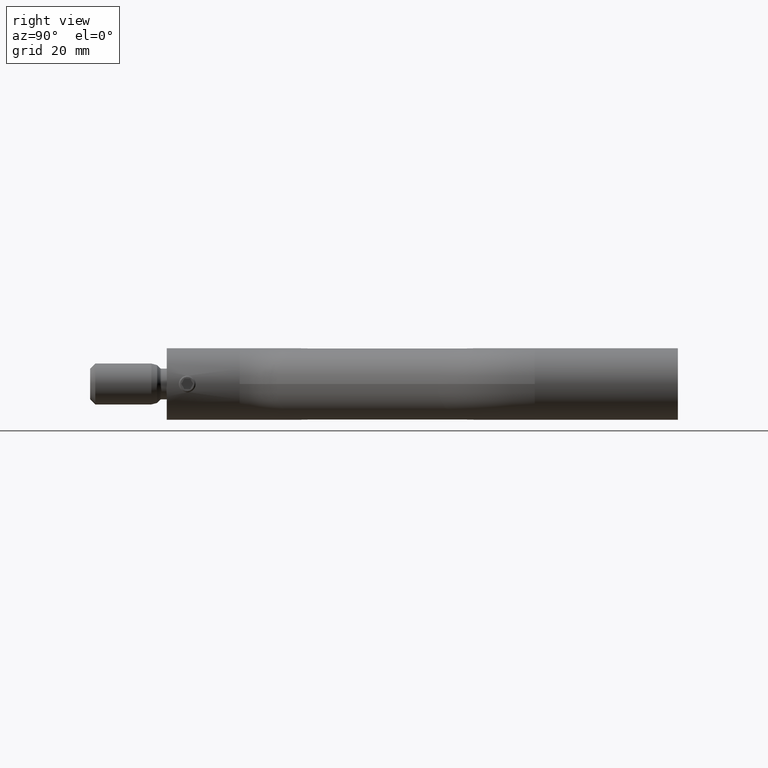
[diagram: clean part render]
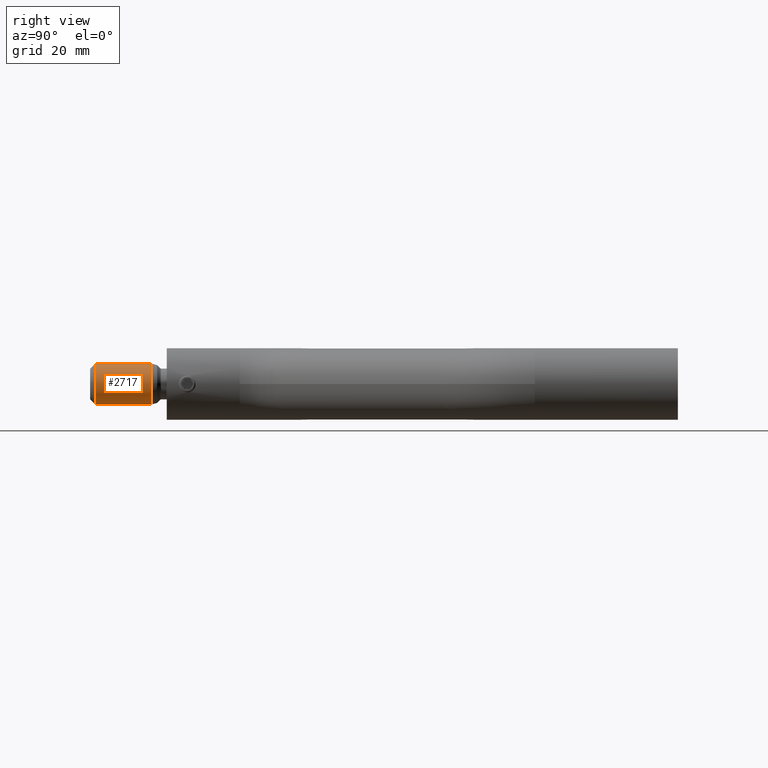
[diagram: same view with one face highlighted and labeled with its STEP entity id]
A machine part, right view. The second image highlights one B-rep face of the part: STEP entity #2717.
In plain terms, the highlighted cylindrical surface (edge-blend (fillet) strip) has radius 4 mm, axis along (-0, -1, -0).
Its self-contained STEP definition (entity closure, byte-faithful):
#89 = CARTESIAN_POINT ( 'NONE',  ( 4.898587196589413800E-016, -13.99999999999999800, -4.000000000000000000 ) ) ;
#202 = CARTESIAN_POINT ( 'NONE',  ( 0.0000000000000000000, 0.0000000000000000000, -4.000000000000001800 ) ) ;
#733 = EDGE_CURVE ( 'NONE', #6433, #6087, #5390, .T. ) ;
#736 = VECTOR ( 'NONE', #10069, 1000.000000000000000 ) ;
#846 = ORIENTED_EDGE ( 'NONE', *, *, #15585, .F. ) ;
#1073 = EDGE_LOOP ( 'NONE', ( #15853, #1677, #3355, #846 ) ) ;
#1135 = LINE ( 'NONE', #202, #736 ) ;
#1677 = ORIENTED_EDGE ( 'NONE', *, *, #7249, .T. ) ;
#2076 = DIRECTION ( 'NONE',  ( 0.0000000000000000000, 0.0000000000000000000, -1.000000000000000000 ) ) ;
#2399 = VECTOR ( 'NONE', #14181, 1000.000000000000000 ) ;
#2717 = ADVANCED_FACE ( 'NONE', ( #8352 ), #10270, .T. ) ;
#3182 = DIRECTION ( 'NONE',  ( 0.0000000000000000000, 0.0000000000000000000, -1.000000000000000000 ) ) ;
#3355 = ORIENTED_EDGE ( 'NONE', *, *, #733, .F. ) ;
#3641 = DIRECTION ( 'NONE',  ( -0.0000000000000000000, -1.000000000000000000, -0.0000000000000000000 ) ) ;
#4269 = CIRCLE ( 'NONE', #6614, 4.000000000000002700 ) ;
#4548 = CARTESIAN_POINT ( 'NONE',  ( 0.0000000000000000000, 0.0000000000000000000, 0.0000000000000000000 ) ) ;
#4611 = CARTESIAN_POINT ( 'NONE',  ( 0.0000000000000000000, -3.000000000000004400, -4.000000000000002700 ) ) ;
#5390 = CIRCLE ( 'NONE', #10880, 4.000000000000000000 ) ;
#5407 = CARTESIAN_POINT ( 'NONE',  ( 4.898587196589416800E-016, -3.000000000000004400, 4.000000000000002700 ) ) ;
#5582 = DIRECTION ( 'NONE',  ( -0.0000000000000000000, -1.000000000000000000, -0.0000000000000000000 ) ) ;
#5753 = DIRECTION ( 'NONE',  ( -0.0000000000000000000, -1.000000000000000000, -0.0000000000000000000 ) ) ;
#6087 = VERTEX_POINT ( 'NONE', #10998 ) ;
#6361 = AXIS2_PLACEMENT_3D ( 'NONE', #4548, #5582, #3182 ) ;
#6433 = VERTEX_POINT ( 'NONE', #89 ) ;
#6614 = AXIS2_PLACEMENT_3D ( 'NONE', #15496, #5753, #2076 ) ;
#7249 = EDGE_CURVE ( 'NONE', #15782, #6087, #13385, .T. ) ;
#8352 = FACE_OUTER_BOUND ( 'NONE', #1073, .T. ) ;
#10069 = DIRECTION ( 'NONE',  ( -0.0000000000000000000, -1.000000000000000000, -0.0000000000000000000 ) ) ;
#10270 = CYLINDRICAL_SURFACE ( 'NONE', #6361, 4.000000000000001800 ) ;
#10880 = AXIS2_PLACEMENT_3D ( 'NONE', #13463, #3641, #13713 ) ;
#10895 = VERTEX_POINT ( 'NONE', #4611 ) ;
#10998 = CARTESIAN_POINT ( 'NONE',  ( 0.0000000000000000000, -13.99999999999999800, 4.000000000000000000 ) ) ;
#11906 = EDGE_CURVE ( 'NONE', #10895, #15782, #4269, .T. ) ;
#13385 = LINE ( 'NONE', #13969, #2399 ) ;
#13463 = CARTESIAN_POINT ( 'NONE',  ( 0.0000000000000000000, -13.99999999999999800, 0.0000000000000000000 ) ) ;
#13713 = DIRECTION ( 'NONE',  ( 0.0000000000000000000, 0.0000000000000000000, -1.000000000000000000 ) ) ;
#13969 = CARTESIAN_POINT ( 'NONE',  ( 4.898587196589415800E-016, 0.0000000000000000000, 4.000000000000001800 ) ) ;
#14181 = DIRECTION ( 'NONE',  ( -0.0000000000000000000, -1.000000000000000000, -0.0000000000000000000 ) ) ;
#15496 = CARTESIAN_POINT ( 'NONE',  ( 0.0000000000000000000, -3.000000000000004400, 0.0000000000000000000 ) ) ;
#15585 = EDGE_CURVE ( 'NONE', #10895, #6433, #1135, .T. ) ;
#15782 = VERTEX_POINT ( 'NONE', #5407 ) ;
#15853 = ORIENTED_EDGE ( 'NONE', *, *, #11906, .T. ) ;